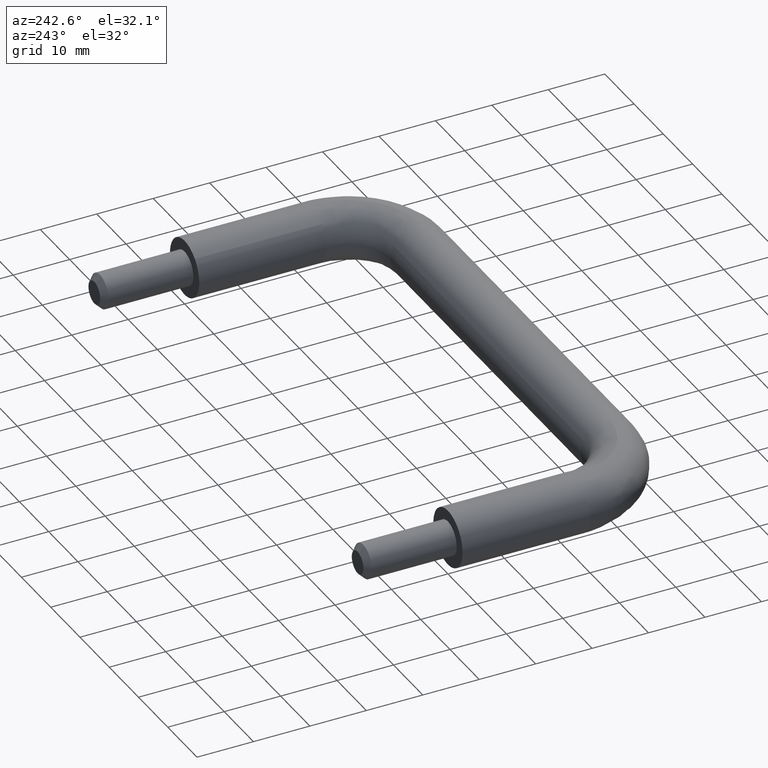
[diagram: clean part render]
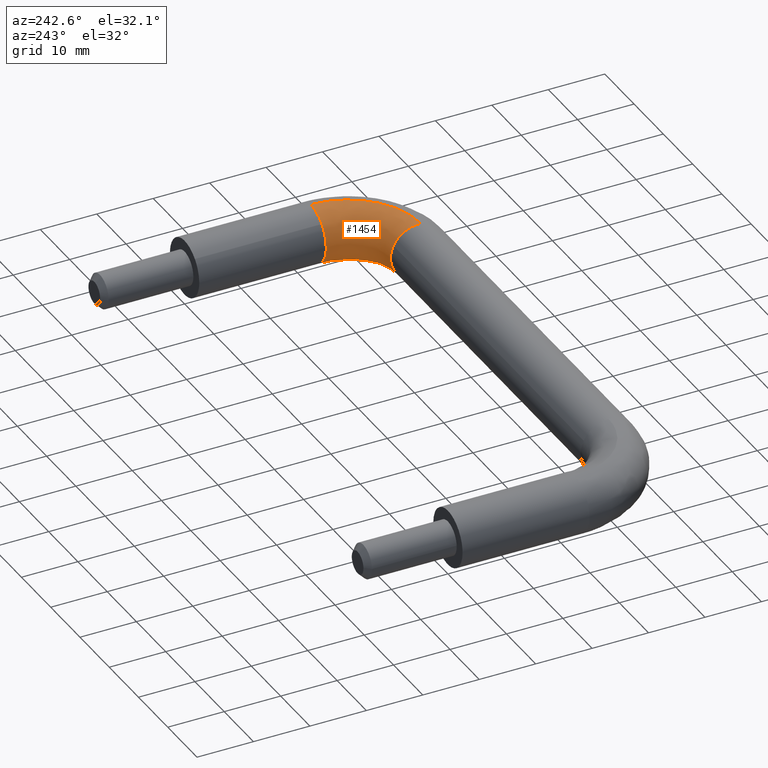
[diagram: same view with one face highlighted and labeled with its STEP entity id]
A machine part, auxiliary view. The second image highlights one B-rep face of the part: STEP entity #1454.
In plain terms, the highlighted face is a freeform B-spline surface patch.
Its self-contained STEP definition (entity closure, byte-faithful):
#732=CARTESIAN_POINT('',(89.937169800352891,-22.500000000202260,-4.999605221016185));
#733=VERTEX_POINT('',#732);
#749=CARTESIAN_POINT('',(84.999999999999986,-22.500000000000000,0.0));
#750=VERTEX_POINT('',#749);
#751=CARTESIAN_POINT('',(89.937169800352891,-22.500000000202256,-4.999605221016185));
#752=CARTESIAN_POINT('',(84.999999999999986,-22.499999999999989,-4.937559649081558));
#753=CARTESIAN_POINT('',(84.999999999999986,-22.500000000000000,0.0));
#761=(BOUNDED_CURVE()B_SPLINE_CURVE(2,(#751,#752,#753),.UNSPECIFIED.,.F.,.U.)B_SPLINE_CURVE_WITH_KNOTS((3,3),(0.252215704094477,0.500000000000000),.UNSPECIFIED.)CURVE()GEOMETRIC_REPRESENTATION_ITEM()RATIONAL_B_SPLINE_CURVE((0.994854295606714,0.709702640003226,1.0))REPRESENTATION_ITEM(''));
#762=EDGE_CURVE('',#733,#750,#761,.T.);
#764=CARTESIAN_POINT('',(86.495453912185141,-22.500000000000000,3.566252475411893));
#765=VERTEX_POINT('',#764);
#766=CARTESIAN_POINT('',(84.999999999999986,-22.500000000000000,0.0));
#767=CARTESIAN_POINT('',(84.999999999999986,-22.499999999999993,2.096674394036493));
#768=CARTESIAN_POINT('',(86.495453912185141,-22.500000000000007,3.566252475411893));
#776=(BOUNDED_CURVE()B_SPLINE_CURVE(2,(#766,#767,#768),.UNSPECIFIED.,.F.,.U.)B_SPLINE_CURVE_WITH_KNOTS((3,3),(0.500000000000000,0.626316777365869),.UNSPECIFIED.)CURVE()GEOMETRIC_REPRESENTATION_ITEM()RATIONAL_B_SPLINE_CURVE((1.0,0.852010689948673,0.853569641739603))REPRESENTATION_ITEM(''));
#777=EDGE_CURVE('',#750,#765,#776,.T.);
#895=CARTESIAN_POINT('',(90.348666259271710,-22.500000000406299,4.987828369104680));
#896=VERTEX_POINT('',#895);
#897=CARTESIAN_POINT('',(86.495453912185141,-22.500000000000000,3.566252475411892));
#898=CARTESIAN_POINT('',(87.954446375330903,-22.499999999999996,5.0));
#899=CARTESIAN_POINT('',(90.0,-22.500000000000000,5.0));
#900=CARTESIAN_POINT('',(90.174545580773170,-22.499999999999996,4.999999999999999));
#901=CARTESIAN_POINT('',(90.348666259271710,-22.500000000406306,4.987828369104681));
#909=(BOUNDED_CURVE()B_SPLINE_CURVE(2,(#897,#898,#899,#900,#901),.UNSPECIFIED.,.F.,.U.)B_SPLINE_CURVE_WITH_KNOTS((3,2,3),(0.626316777365868,0.750000000000000,0.762166313561032),.UNSPECIFIED.)CURVE()GEOMETRIC_REPRESENTATION_ITEM()RATIONAL_B_SPLINE_CURVE((0.853569641739603,0.855096091237873,1.0,0.985746277040062,0.972879876183666))REPRESENTATION_ITEM(''));
#910=EDGE_CURVE('',#765,#896,#909,.T.);
#954=CARTESIAN_POINT('',(77.500000000000028,-30.521972536830301,2.224245948427894));
#955=VERTEX_POINT('',#954);
#956=CARTESIAN_POINT('',(77.500000002214335,-35.348666259479671,4.987828369090145));
#957=VERTEX_POINT('',#956);
#958=CARTESIAN_POINT('',(77.500000000000014,-30.521972536830297,2.224245948427894));
#959=CARTESIAN_POINT('',(77.500000000000014,-31.900695591542707,5.000000000000001));
#960=CARTESIAN_POINT('',(77.500000000000000,-35.0,5.0));
#961=CARTESIAN_POINT('',(77.500000000000014,-35.174545580981878,5.0));
#962=CARTESIAN_POINT('',(77.500000002214335,-35.348666259479671,4.987828369090145));
#970=(BOUNDED_CURVE()B_SPLINE_CURVE(2,(#958,#959,#960,#961,#962),.UNSPECIFIED.,.F.,.U.)B_SPLINE_CURVE_WITH_KNOTS((3,2,3),(0.575619190623714,0.750000000000000,0.762166313575372),.UNSPECIFIED.)CURVE()GEOMETRIC_REPRESENTATION_ITEM()RATIONAL_B_SPLINE_CURVE((0.876408099967338,0.795700173769938,1.0,0.985746277023262,0.972879876153337))REPRESENTATION_ITEM(''));
#971=EDGE_CURVE('',#955,#957,#970,.T.);
#1044=CARTESIAN_POINT('',(77.500000000186986,-31.558227959531859,-3.626872650146366));
#1045=VERTEX_POINT('',#1044);
#1051=CARTESIAN_POINT('',(77.500000000592394,-34.937169799584353,-4.999605221006526));
#1052=VERTEX_POINT('',#1051);
#1053=CARTESIAN_POINT('',(77.500000000592394,-34.937169799584353,-4.999605221006526));
#1054=CARTESIAN_POINT('',(77.500000000357417,-32.978853147400088,-4.974994991948138));
#1055=CARTESIAN_POINT('',(77.500000000186972,-31.558227959531862,-3.626872650146367));
#1063=(BOUNDED_CURVE()B_SPLINE_CURVE(2,(#1053,#1054,#1055),.UNSPECIFIED.,.F.,.U.)B_SPLINE_CURVE_WITH_KNOTS((3,3),(0.252215704148546,0.371049491799913),.UNSPECIFIED.)CURVE()GEOMETRIC_REPRESENTATION_ITEM()RATIONAL_B_SPLINE_CURVE((0.994854295482269,0.858099659149629,0.853699663950849))REPRESENTATION_ITEM(''));
#1064=EDGE_CURVE('',#1052,#1045,#1063,.T.);
#1113=CARTESIAN_POINT('',(77.500000000000000,-30.0,0.0));
#1114=VERTEX_POINT('',#1113);
#1115=CARTESIAN_POINT('',(77.500000000000000,-30.0,0.0));
#1116=CARTESIAN_POINT('',(77.500000000000000,-30.000000000000011,1.173369647372439));
#1117=CARTESIAN_POINT('',(77.500000000000028,-30.521972536830301,2.224245948427894));
#1125=(BOUNDED_CURVE()B_SPLINE_CURVE(2,(#1115,#1116,#1117),.UNSPECIFIED.,.F.,.U.)B_SPLINE_CURVE_WITH_KNOTS((3,3),(0.500000000000000,0.575619190623715),.UNSPECIFIED.)CURVE()GEOMETRIC_REPRESENTATION_ITEM()RATIONAL_B_SPLINE_CURVE((1.0,0.911406607416609,0.876408099967338))REPRESENTATION_ITEM(''));
#1126=EDGE_CURVE('',#1114,#955,#1125,.T.);
#1128=CARTESIAN_POINT('',(77.500000000186972,-31.558227959531862,-3.626872650146367));
#1129=CARTESIAN_POINT('',(77.499999999999986,-30.000000000000007,-2.148170213892603));
#1130=CARTESIAN_POINT('',(77.500000000000000,-30.0,0.0));
#1138=(BOUNDED_CURVE()B_SPLINE_CURVE(2,(#1128,#1129,#1130),.UNSPECIFIED.,.F.,.U.)B_SPLINE_CURVE_WITH_KNOTS((3,3),(0.371049491799913,0.500000000000000),.UNSPECIFIED.)CURVE()GEOMETRIC_REPRESENTATION_ITEM()RATIONAL_B_SPLINE_CURVE((0.853699663950849,0.848925082342584,1.0))REPRESENTATION_ITEM(''));
#1139=EDGE_CURVE('',#1045,#1114,#1138,.T.);
#1390=CARTESIAN_POINT('',(76.606541061896095,-35.317564068823465,4.987828388444838));
#1391=CARTESIAN_POINT('',(91.344915040638497,-36.344914655387313,4.987828388444835));
#1392=CARTESIAN_POINT('',(90.317564043961895,-21.606540705232142,4.987828388444838));
#1393=CARTESIAN_POINT('',(76.616467438591670,-35.175160244941836,4.997807049440652));
#1394=CARTESIAN_POINT('',(91.191097292389529,-36.191096911418526,4.997807049440650));
#1395=CARTESIAN_POINT('',(90.175160220356489,-21.616467085890307,4.997807049440652));
#1396=CARTESIAN_POINT('',(76.626417252596525,-35.032420189365531,4.999605221019078));
#1397=CARTESIAN_POINT('',(91.036916362866734,-36.036915986185967,4.999605221019080));
#1398=CARTESIAN_POINT('',(90.032420165057047,-21.626416903867071,4.999605221019078));
#1399=CARTESIAN_POINT('',(76.974075287894451,-30.044917181192606,5.062435420435842));
#1400=CARTESIAN_POINT('',(85.649655956574762,-30.649655729800887,5.062435420435842));
#1401=CARTESIAN_POINT('',(85.044917166558136,-21.974075077948182,5.062435420435843));
#1402=CARTESIAN_POINT('',(76.978444317591993,-29.982239070673444,0.062830199416764));
#1403=CARTESIAN_POINT('',(85.581954081991867,-30.581953857101912,0.062830199416764));
#1404=CARTESIAN_POINT('',(84.982239056160509,-21.978444109389812,0.062830199416764));
#1405=CARTESIAN_POINT('',(76.982813347289508,-29.919560960154282,-4.936775021602313));
#1406=CARTESIAN_POINT('',(85.514252207408958,-30.514251984402907,-4.936775021602313));
#1407=CARTESIAN_POINT('',(84.919560945762939,-21.982813140831446,-4.936775021602315));
#1408=CARTESIAN_POINT('',(76.635155311991610,-34.907063968327215,-4.999605221019078));
#1409=CARTESIAN_POINT('',(90.901512613700973,-35.901512240787966,-4.999605221019080));
#1410=CARTESIAN_POINT('',(89.907063944261850,-21.635154966750328,-4.999605221019078));
#1418=(BOUNDED_SURFACE()B_SPLINE_SURFACE(2,2,((#1390,#1393,#1396,#1399,#1402,#1405,#1408),(#1391,#1394,#1397,#1400,#1403,#1406,#1409),(#1392,#1395,#1398,#1401,#1404,#1407,#1410)),.UNSPECIFIED.,.F.,.F.,.U.)B_SPLINE_SURFACE_WITH_KNOTS((3,3),(3,2,2,3),(0.0,23.415073753643249),(0.0,0.331370533878607,8.615641781340514,16.899913028802420),.UNSPECIFIED.)GEOMETRIC_REPRESENTATION_ITEM()RATIONAL_B_SPLINE_SURFACE(((0.895729732449210,0.905606490046838,0.916342095240933,0.647951709431553,0.916342095240933,0.647951709431553,0.916342095240933),(0.587800221482116,0.594281596491894,0.601326568744382,0.425202094466791,0.601326568744382,0.425202094466791,0.601326568744382),(0.895729743804760,0.905606501527600,0.916342106857795,0.647951717645915,0.916342106857795,0.647951717645915,0.916342106857795)))REPRESENTATION_ITEM('')SURFACE());
#1419=ORIENTED_EDGE('',*,*,#910,.F.);
#1420=ORIENTED_EDGE('',*,*,#777,.F.);
#1421=ORIENTED_EDGE('',*,*,#762,.F.);
#1422=CARTESIAN_POINT('',(77.500000000592394,-34.937169799584353,-4.999605221006526));
#1423=CARTESIAN_POINT('',(89.937169800178708,-34.937169799398418,-4.999605221019079));
#1424=CARTESIAN_POINT('',(89.937169800352891,-22.500000000202256,-4.999605221016185));
#1432=(BOUNDED_CURVE()B_SPLINE_CURVE(2,(#1422,#1423,#1424),.UNSPECIFIED.,.F.,.U.)B_SPLINE_CURVE_WITH_KNOTS((3,3),(-1.734750791559414,-0.265249208375395),.UNSPECIFIED.)CURVE()GEOMETRIC_REPRESENTATION_ITEM()RATIONAL_B_SPLINE_CURVE((0.889029723541361,0.628638946240833,0.889029723564464))REPRESENTATION_ITEM(''));
#1433=EDGE_CURVE('',#1052,#733,#1432,.T.);
#1434=ORIENTED_EDGE('',*,*,#1433,.F.);
#1435=ORIENTED_EDGE('',*,*,#1064,.T.);
#1436=ORIENTED_EDGE('',*,*,#1139,.T.);
#1437=ORIENTED_EDGE('',*,*,#1126,.T.);
#1438=ORIENTED_EDGE('',*,*,#971,.T.);
#1439=CARTESIAN_POINT('',(77.500000002214335,-35.348666259479671,4.987828369090146));
#1440=CARTESIAN_POINT('',(90.348666257064622,-35.348666253448521,4.987828369202160));
#1441=CARTESIAN_POINT('',(90.348666259271710,-22.500000000406299,4.987828369104680));
#1449=(BOUNDED_CURVE()B_SPLINE_CURVE(2,(#1439,#1440,#1441),.UNSPECIFIED.,.F.,.U.)B_SPLINE_CURVE_WITH_KNOTS((3,3),(-1.734750791300246,-0.265249208407315),.UNSPECIFIED.)CURVE()GEOMETRIC_REPRESENTATION_ITEM()RATIONAL_B_SPLINE_CURVE((0.869031711751187,0.614498216606569,0.869031711852494))REPRESENTATION_ITEM(''));
#1450=EDGE_CURVE('',#957,#896,#1449,.T.);
#1451=ORIENTED_EDGE('',*,*,#1450,.T.);
#1452=EDGE_LOOP('',(#1419,#1420,#1421,#1434,#1435,#1436,#1437,#1438,#1451));
#1453=FACE_OUTER_BOUND('',#1452,.T.);
#1454=ADVANCED_FACE('',(#1453),#1418,.T.);